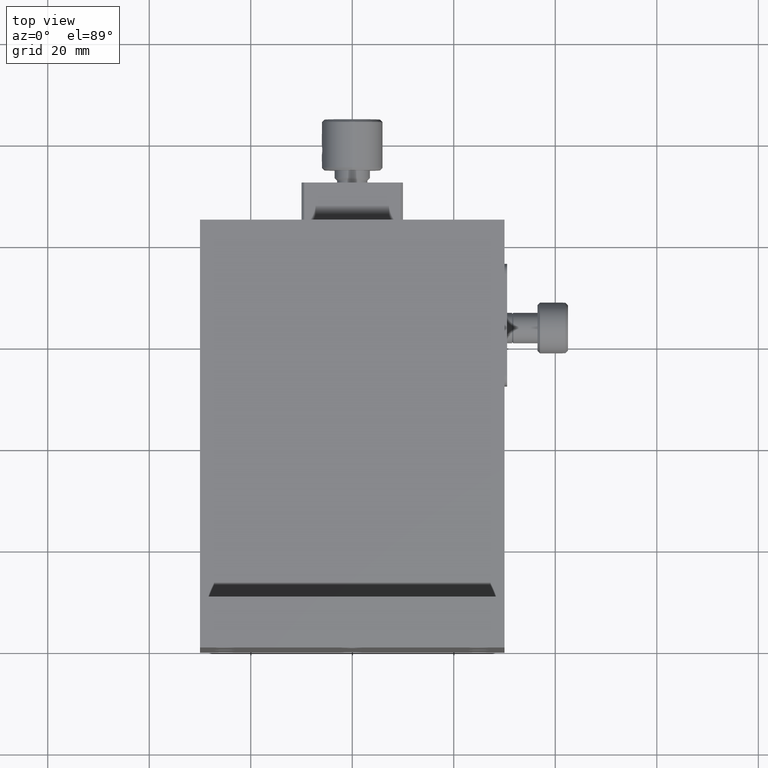
[diagram: clean part render]
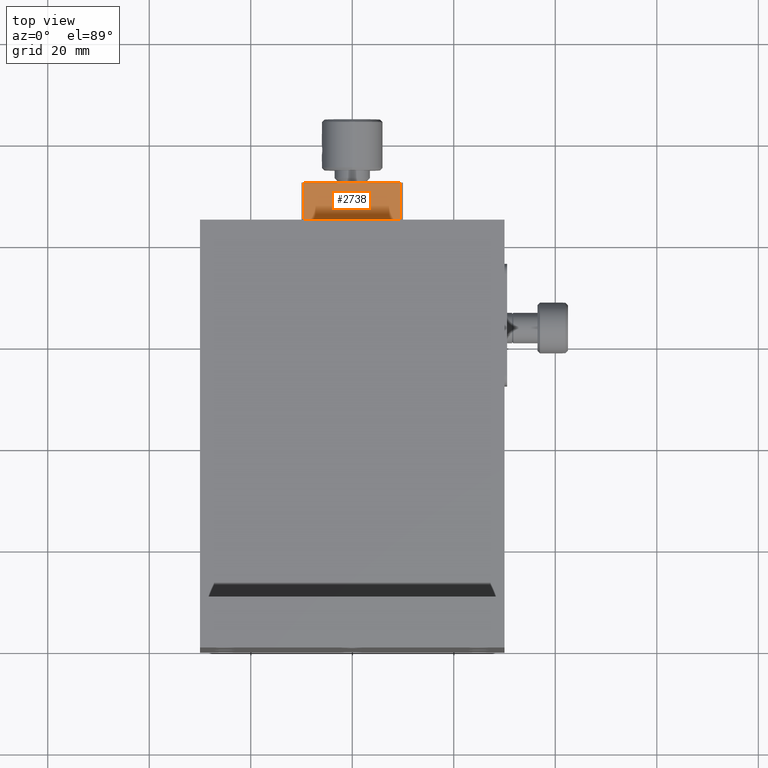
[diagram: same view with one face highlighted and labeled with its STEP entity id]
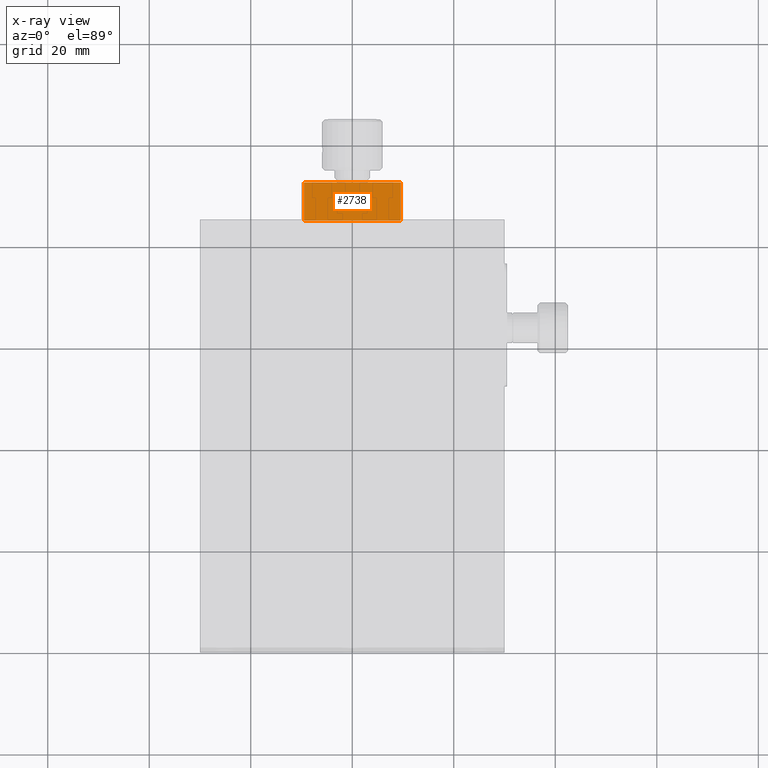
[diagram: x-ray of the same camera — body ghosted, the highlighted face saturated]
A machine part, top view. The second image highlights one B-rep face of the part: STEP entity #2738.
The next image is the same camera in x-ray: the body ghosted, the highlighted face saturated — about 0% of this face is hidden behind the body in this view.
In plain terms, the highlighted planar face has unit normal (0, 0, -1).
Its self-contained STEP definition (entity closure, byte-faithful):
#221 = AXIS2_PLACEMENT_3D ( 'NONE', #3093, #5309, #364 ) ;
#264 = EDGE_CURVE ( 'NONE', #3217, #7132, #7040, .T. ) ;
#361 = VERTEX_POINT ( 'NONE', #431 ) ;
#364 = DIRECTION ( 'NONE',  ( -1.000000000000000000, 0.000000000000000000, -0.000000000000000000 ) ) ;
#431 = CARTESIAN_POINT ( 'NONE',  ( -9.500000000000000000, 92.50000000000000000, -0.5000000000000002220 ) ) ;
#830 = PLANE ( 'NONE',  #221 ) ;
#1230 = CARTESIAN_POINT ( 'NONE',  ( 0.000000000000000000, 84.99999999999998579, -0.5000000000000000000 ) ) ;
#1443 = VECTOR ( 'NONE', #4055, 1000.000000000000000 ) ;
#1463 = CARTESIAN_POINT ( 'NONE',  ( -9.500000000000000000, 84.99999999999998579, -0.5000000000000001110 ) ) ;
#1924 = CARTESIAN_POINT ( 'NONE',  ( 9.500000000000000000, 84.99999999999998579, -0.5000000000000000000 ) ) ;
#1998 = CARTESIAN_POINT ( 'NONE',  ( 9.500000000000000000, 92.50000000000000000, -0.5000000000000000000 ) ) ;
#2343 = DIRECTION ( 'NONE',  ( -1.000000000000000000, -0.000000000000000000, 0.000000000000000000 ) ) ;
#2738 = ADVANCED_FACE ( 'NONE', ( #4217 ), #830, .F. ) ;
#2751 = VECTOR ( 'NONE', #5040, 1000.000000000000000 ) ;
#2942 = LINE ( 'NONE', #1230, #4110 ) ;
#3093 = CARTESIAN_POINT ( 'NONE',  ( -9.500000000000000000, 92.50000000000000000, -0.5000000000000000000 ) ) ;
#3108 = DIRECTION ( 'NONE',  ( -0.000000000000000000, -1.000000000000000000, -0.000000000000000000 ) ) ;
#3217 = VERTEX_POINT ( 'NONE', #3976 ) ;
#3386 = VERTEX_POINT ( 'NONE', #1463 ) ;
#3969 = ORIENTED_EDGE ( 'NONE', *, *, #6985, .F. ) ;
#3976 = CARTESIAN_POINT ( 'NONE',  ( 9.500000000000000000, 92.50000000000000000, -0.5000000000000000000 ) ) ;
#4055 = DIRECTION ( 'NONE',  ( 0.000000000000000000, 1.000000000000000000, 0.000000000000000000 ) ) ;
#4093 = LINE ( 'NONE', #5728, #1443 ) ;
#4110 = VECTOR ( 'NONE', #2343, 1000.000000000000000 ) ;
#4157 = EDGE_CURVE ( 'NONE', #7132, #3386, #2942, .T. ) ;
#4217 = FACE_OUTER_BOUND ( 'NONE', #6416, .T. ) ;
#4531 = CARTESIAN_POINT ( 'NONE',  ( -9.500000000000000000, 92.50000000000000000, -0.5000000000000000000 ) ) ;
#5040 = DIRECTION ( 'NONE',  ( 1.000000000000000000, -0.000000000000000000, 0.000000000000000000 ) ) ;
#5309 = DIRECTION ( 'NONE',  ( 0.000000000000000000, 0.000000000000000000, -1.000000000000000000 ) ) ;
#5348 = VECTOR ( 'NONE', #3108, 1000.000000000000000 ) ;
#5728 = CARTESIAN_POINT ( 'NONE',  ( -9.500000000000000000, 92.50000000000000000, -0.5000000000000000000 ) ) ;
#6416 = EDGE_LOOP ( 'NONE', ( #7174, #3969, #6583, #6502 ) ) ;
#6502 = ORIENTED_EDGE ( 'NONE', *, *, #4157, .F. ) ;
#6583 = ORIENTED_EDGE ( 'NONE', *, *, #7065, .F. ) ;
#6752 = LINE ( 'NONE', #4531, #2751 ) ;
#6985 = EDGE_CURVE ( 'NONE', #361, #3217, #6752, .T. ) ;
#7040 = LINE ( 'NONE', #1998, #5348 ) ;
#7065 = EDGE_CURVE ( 'NONE', #3386, #361, #4093, .T. ) ;
#7132 = VERTEX_POINT ( 'NONE', #1924 ) ;
#7174 = ORIENTED_EDGE ( 'NONE', *, *, #264, .F. ) ;